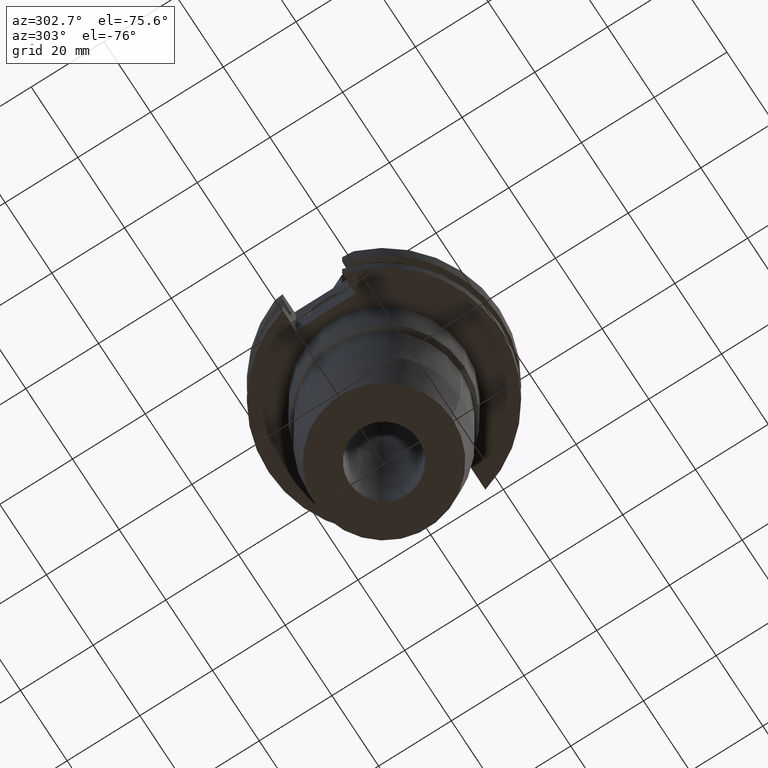
[diagram: clean part render]
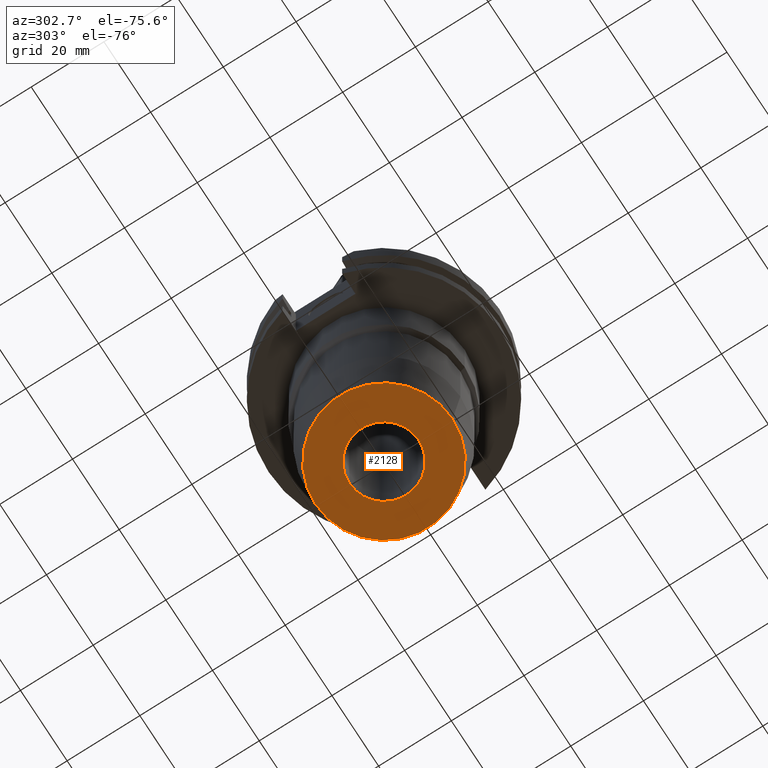
[diagram: same view with one face highlighted and labeled with its STEP entity id]
A machine part, auxiliary view. The second image highlights one B-rep face of the part: STEP entity #2128.
In plain terms, the highlighted planar face has unit normal (0, 0, 1).
Its self-contained STEP definition (entity closure, byte-faithful):
#920=CARTESIAN_POINT('',(0.E0,0.E0,-7.62E1));
#921=DIRECTION('',(0.E0,0.E0,1.E0));
#922=DIRECTION('',(0.E0,-1.E0,0.E0));
#923=AXIS2_PLACEMENT_3D('',#920,#921,#922);
#928=CARTESIAN_POINT('',(0.E0,0.E0,-7.62E1));
#929=DIRECTION('',(0.E0,0.E0,1.E0));
#930=DIRECTION('',(0.E0,1.E0,0.E0));
#931=AXIS2_PLACEMENT_3D('',#928,#929,#930);
#936=CARTESIAN_POINT('',(0.E0,0.E0,-7.62E1));
#937=DIRECTION('',(0.E0,0.E0,-1.E0));
#938=DIRECTION('',(0.E0,-1.E0,0.E0));
#939=AXIS2_PLACEMENT_3D('',#936,#937,#938);
#944=CARTESIAN_POINT('',(0.E0,0.E0,-7.62E1));
#945=DIRECTION('',(0.E0,0.E0,-1.E0));
#946=DIRECTION('',(0.E0,1.E0,0.E0));
#947=AXIS2_PLACEMENT_3D('',#944,#945,#946);
#1284=CARTESIAN_POINT('',(0.E0,1.88455E1,-7.62E1));
#1285=VERTEX_POINT('',#1284);
#1286=CARTESIAN_POINT('',(0.E0,-1.88455E1,-7.62E1));
#1287=VERTEX_POINT('',#1286);
#1288=CARTESIAN_POINT('',(0.E0,-9.525E0,-7.62E1));
#1289=CARTESIAN_POINT('',(0.E0,9.525E0,-7.62E1));
#1290=VERTEX_POINT('',#1288);
#1291=VERTEX_POINT('',#1289);
#2113=CARTESIAN_POINT('',(0.E0,0.E0,-7.62E1));
#2114=DIRECTION('',(0.E0,0.E0,1.E0));
#2115=DIRECTION('',(0.E0,1.E0,0.E0));
#2116=AXIS2_PLACEMENT_3D('',#2113,#2114,#2115);
#2117=PLANE('',#2116);
#2118=ORIENTED_EDGE('',*,*,#2092,.T.);
#2119=ORIENTED_EDGE('',*,*,#2108,.T.);
#2120=EDGE_LOOP('',(#2118,#2119));
#2121=FACE_OUTER_BOUND('',#2120,.F.);
#2123=ORIENTED_EDGE('',*,*,#2122,.T.);
#2125=ORIENTED_EDGE('',*,*,#2124,.T.);
#2126=EDGE_LOOP('',(#2123,#2125));
#2127=FACE_BOUND('',#2126,.F.);
#924=CIRCLE('',#923,1.88455E1);
#932=CIRCLE('',#931,1.88455E1);
#940=CIRCLE('',#939,9.525E0);
#948=CIRCLE('',#947,9.525E0);
#2092=EDGE_CURVE('',#1287,#1285,#924,.T.);
#2108=EDGE_CURVE('',#1285,#1287,#932,.T.);
#2122=EDGE_CURVE('',#1290,#1291,#940,.T.);
#2124=EDGE_CURVE('',#1291,#1290,#948,.T.);
#2128=ADVANCED_FACE('',(#2121,#2127),#2117,.F.);